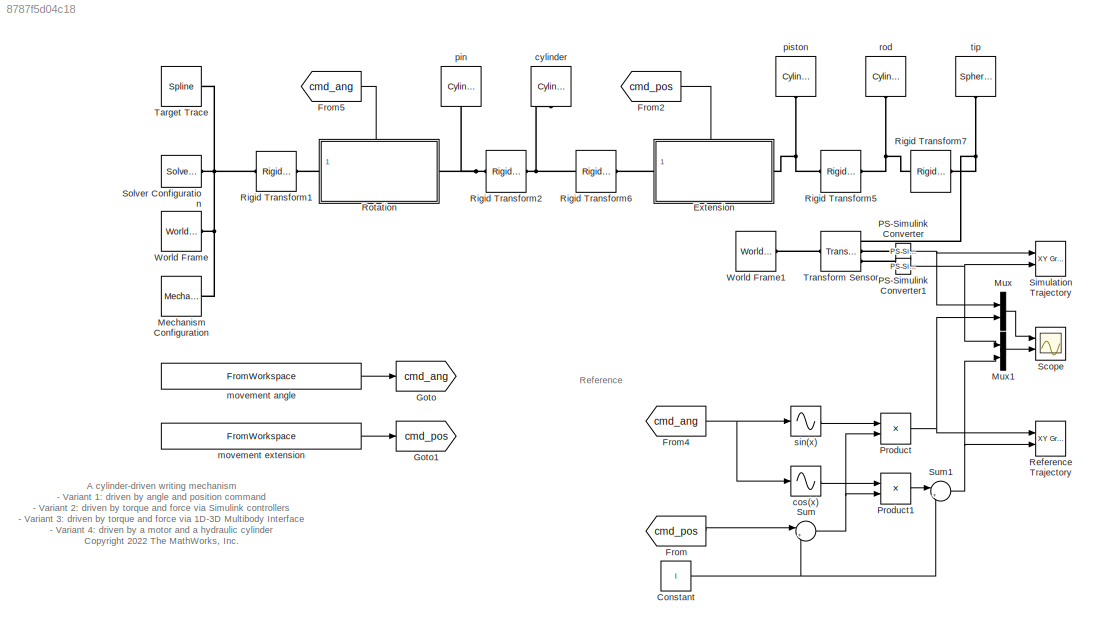
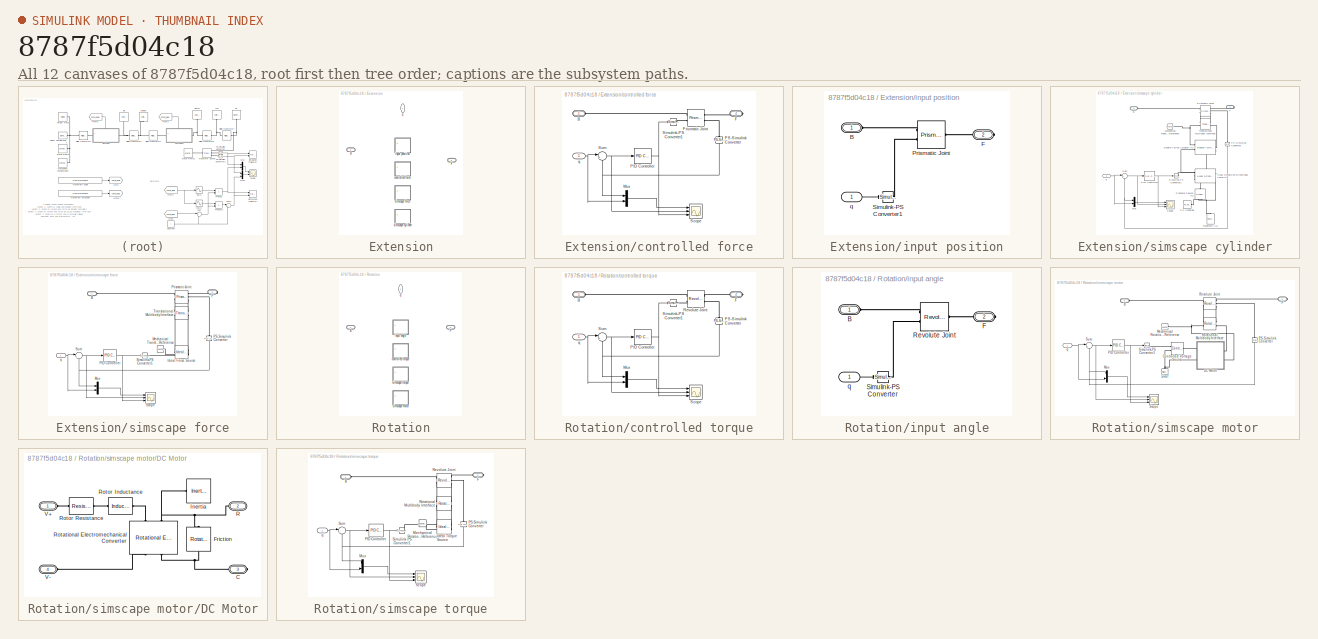
[diagram: thumbnail index - all 12 canvases of the model, root first then tree order]
MODEL slx_8787f5d04c18
KIND model
CONFIG AbsTol = 1e-3
CONFIG EnableMultiTasking = on
CONFIG FixedStep = auto
CONFIG MaxStep = 1e-2
CONFIG MinStep = auto
CONFIG PreLoadFcn = init_writing_arm;
CONFIG RelTol = 1e-3
CONFIG SampleTimeConstraint = Unconstrained
CONFIG SolverName = VariableStepAuto
CONFIG StartTime = 0.0
CONFIG StopTime = tsim
BLOCK [Constant] Constant
  Value = l
BLOCK [SubSystem] Extension
  LabelModeActiveChoice = v1
  PortSchema = {"entries":[{"content":{"sides":[{"content":{"connectorIds":["LConn1"]},"type":"ConnectorPlacement.EquallySpacedRectSide","uuid":"bead34ab-44f9-4a5f-9198-646401a7f693"},{"content":{"connectorIds":["RConn1"],"side":"RIGHT"},"type":"ConnectorPlacement.EquallySpacedRectSide","uuid":"af49e909-a3ff-4bd4-8c7b-cf1fb487ed9a"},{"content":{"connectorIds":["In1"],"side":"TOP"},"type":"ConnectorPlacement.Equa...<+250ch>  <repeated x10 — deduplicated; at blocks: Extension, controlled force, input position, simscape cylinder, simscape force, Rotation, controlled torque, input angle, simscape motor, simscape torque>
  Ports = [1, 0, 0, 0, 0, 1, 1]
  RequestExecContextInheritance = off
  Variant = on
  VariantControl = Choice
  VariantControlMode = label
BLOCK [PMIOPort] Extension/B
  Side = Left
BLOCK [PMIOPort] Extension/F
  Port = 2
  Side = Right
BLOCK [SubSystem] Extension/controlled force
  Ports = [1, 0, 0, 0, 0, 1, 1]
  RequestExecContextInheritance = off
  VariantControl = v2
BLOCK [PMIOPort] Extension/controlled force/B
  Side = Left
BLOCK [PMIOPort] Extension/controlled force/F
  Port = 2
  Side = Right
BLOCK [Mux] Extension/controlled force/Mux
  DisplayOption = bar
  Inputs = 2
  Ports = [2, 1]
BLOCK [Reference] Extension/controlled force/PID Controller  REF=pid_lib/PID Controller
  Ports = [1, 1]
  SourceBlock = pid_lib/PID Controller
  SourceProductBaseCode = SL
  SourceType = PID 1dof
BLOCK [Reference] Extension/controlled force/PS-Simulink Converter  REF=nesl_utility/PS-Simulink
Converter
  NameLocation = left
  Ports = [0, 1, 0, 0, 0, 1]
  SourceBlock = nesl_utility/PS-Simulink\nConverter
  SourceProductBaseCode = PW,SS
  SourceType = PS-Simulink\nConverter
BLOCK [Reference] Extension/controlled force/Prismatic Joint  REF=sm_lib/Joints/Prismatic
Joint
  Ports = [0, 0, 0, 0, 0, 2, 2]
  SourceBlock = sm_lib/Joints/Prismatic\nJoint
  SourceProductBaseCode = MS
  SourceType = Prismatic\nJoint
BLOCK [Scope] Extension/controlled force/Scope
  Floating = off
  NumInputPorts = 3
  Ports = [3]
  ScopeSpecificationString = Simulink.scopes.TimeScopeBlockCfg('CurrentConfiguration', extmgr.ConfigurationSet(extmgr.Configuration('Core','General UI',true),extmgr.Configuration('Core','Source UI',true),extmgr.Configuration('Sources','WiredSimulink',true,'DataLoggingVariableName','ScopeData1'),extmgr.Configuration('Visuals','Time Domain',true,'SerializedDisplays',{struct('MinYLimReal','-17.41288','MaxYLimReal','156.71593','Y...<+2775ch>
BLOCK [Reference] Extension/controlled force/Simulink-PS Converter1  REF=nesl_utility/Simulink-PS
Converter
  Ports = [1, 0, 0, 0, 0, 0, 1]
  SourceBlock = nesl_utility/Simulink-PS\nConverter
  SourceProductBaseCode = PW,SS
  SourceType = Simulink-PS\nConverter
BLOCK [Sum] Extension/controlled force/Sum
  Inputs = |+-
  Ports = [2, 1]
BLOCK [Inport] Extension/controlled force/q
BLOCK [SubSystem] Extension/input position
  Ports = [1, 0, 0, 0, 0, 1, 1]
  RequestExecContextInheritance = off
  VariantControl = v1
BLOCK [PMIOPort] Extension/input position/B
  Side = Left
BLOCK [PMIOPort] Extension/input position/F
  Port = 2
  Side = Right
BLOCK [Reference] Extension/input position/Prismatic Joint  REF=sm_lib/Joints/Prismatic
Joint
  Ports = [0, 0, 0, 0, 0, 2, 1]
  SourceBlock = sm_lib/Joints/Prismatic\nJoint
  SourceProductBaseCode = MS
  SourceType = Prismatic\nJoint
BLOCK [Reference] Extension/input position/Simulink-PS Converter1  REF=nesl_utility/Simulink-PS
Converter
  Ports = [1, 0, 0, 0, 0, 0, 1]
  SourceBlock = nesl_utility/Simulink-PS\nConverter
  SourceProductBaseCode = PW,SS
  SourceType = Simulink-PS\nConverter
BLOCK [Inport] Extension/input position/q
BLOCK [Inport] Extension/q
  NameLocation = left
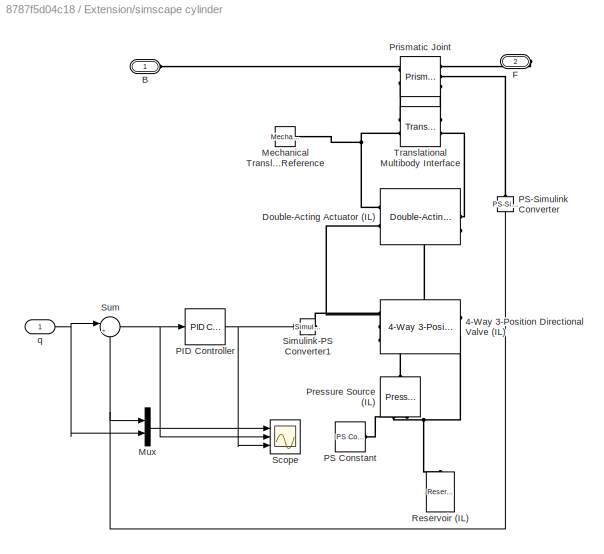
BLOCK [SubSystem] Extension/simscape cylinder
  Ports = [1, 0, 0, 0, 0, 1, 1]
  RequestExecContextInheritance = off
  VariantControl = v4
BLOCK [Reference] Extension/simscape cylinder/4-Way 3-Position Directional Valve (IL)  REF=SimscapeFluids_lib/Isothermal Liquid/Valves & Orifices/Directional Control
Valves/4-Way 3-Position
Directional Valve
(IL)
  Ports = [0, 0, 0, 0, 0, 3, 2]
  SourceBlock = SimscapeFluids_lib/Isothermal Liquid/Valves & Orifices/Directional Control\nValves/4-Way 3-Position\nDirectional Valve\n(IL)
  SourceProductBaseCode = SH
  SourceType = 4-Way 3-Position\nDirectional Valve\n(IL)
BLOCK [PMIOPort] Extension/simscape cylinder/B
  Side = Left
BLOCK [Reference] Extension/simscape cylinder/Double-Acting Actuator (IL)  REF=SimscapeFluids_lib/Isothermal Liquid/Actuators/Double-Acting
Actuator (IL)
  Ports = [0, 0, 0, 0, 0, 2, 3]
  SourceBlock = SimscapeFluids_lib/Isothermal Liquid/Actuators/Double-Acting\nActuator (IL)
  SourceProductBaseCode = SH
  SourceType = Double-Acting\nActuator (IL)
BLOCK [PMIOPort] Extension/simscape cylinder/F
  Port = 2
  Side = Right
BLOCK [Reference] Extension/simscape cylinder/Mechanical Translational Reference  REF=fl_lib/Mechanical/Translational
Elements/Mechanical
Translational
Reference
  Ports = [0, 0, 0, 0, 0, 1]
  SourceBlock = fl_lib/Mechanical/Translational\nElements/Mechanical\nTranslational\nReference
  SourceProductBaseCode = SS
  SourceType = Mechanical\nTranslational\nReference
BLOCK [Mux] Extension/simscape cylinder/Mux
  DisplayOption = bar
  Inputs = 2
  Ports = [2, 1]
BLOCK [Reference] Extension/simscape cylinder/PID Controller  REF=pid_lib/PID Controller
  Ports = [1, 1]
  SourceBlock = pid_lib/PID Controller
  SourceProductBaseCode = SL
  SourceType = PID 1dof
BLOCK [Reference] Extension/simscape cylinder/PS Constant  REF=fl_lib/Physical Signals/Sources/PS Constant
  Ports = [0, 0, 0, 0, 0, 0, 1]
  SourceBlock = fl_lib/Physical Signals/Sources/PS Constant
  SourceProductBaseCode = SS
  SourceType = PS Constant
BLOCK [Reference] Extension/simscape cylinder/PS-Simulink Converter  REF=nesl_utility/PS-Simulink
Converter
  NameLocation = left
  Ports = [0, 1, 0, 0, 0, 1]
  SourceBlock = nesl_utility/PS-Simulink\nConverter
  SourceProductBaseCode = PW,SS
  SourceType = PS-Simulink\nConverter
BLOCK [Reference] Extension/simscape cylinder/Pressure Source (IL)  REF=fl_lib/Isothermal Liquid/Sources/Pressure Source (IL)
  NameLocation = right
  Ports = [0, 0, 0, 0, 0, 2, 1]
  SourceBlock = fl_lib/Isothermal Liquid/Sources/Pressure Source (IL)
  SourceProductBaseCode = SS
  SourceType = Pressure Source (IL)
BLOCK [Reference] Extension/simscape cylinder/Prismatic Joint  REF=sm_lib/Joints/Prismatic
Joint
  Ports = [0, 0, 0, 0, 0, 2, 3]
  SourceBlock = sm_lib/Joints/Prismatic\nJoint
  SourceProductBaseCode = MS
  SourceType = Prismatic\nJoint
BLOCK [Reference] Extension/simscape cylinder/Reservoir (IL)  REF=fl_lib/Isothermal Liquid/Elements/Reservoir (IL)
  NameLocation = right
  Ports = [0, 0, 0, 0, 0, 1]
  SourceBlock = fl_lib/Isothermal Liquid/Elements/Reservoir (IL)
  SourceProductBaseCode = SS
  SourceType = Reservoir (IL)
BLOCK [Scope] Extension/simscape cylinder/Scope
  Floating = off
  NumInputPorts = 3
  Ports = [3]
  ScopeSpecificationString = Simulink.scopes.TimeScopeBlockCfg('CurrentConfiguration', extmgr.ConfigurationSet(extmgr.Configuration('Core','General UI',true),extmgr.Configuration('Core','Source UI',true),extmgr.Configuration('Sources','WiredSimulink',true,'DataLoggingVariableName','ScopeData1'),extmgr.Configuration('Visuals','Time Domain',true,'SerializedDisplays',{struct('MinYLimReal','-17.40997','MaxYLimReal','156.6897','YL...<+2794ch>
BLOCK [Reference] Extension/simscape cylinder/Simulink-PS Converter1  REF=nesl_utility/Simulink-PS
Converter
  Ports = [1, 0, 0, 0, 0, 0, 1]
  SourceBlock = nesl_utility/Simulink-PS\nConverter
  SourceProductBaseCode = PW,SS
  SourceType = Simulink-PS\nConverter
BLOCK [Sum] Extension/simscape cylinder/Sum
  Inputs = |+-
  Ports = [2, 1]
BLOCK [Reference] Extension/simscape cylinder/Translational Multibody Interface  REF=fl_lib/Mechanical/Multibody Interfaces/Translational
Multibody Interface
  Ports = [0, 0, 0, 0, 0, 2, 2]
  SourceBlock = fl_lib/Mechanical/Multibody Interfaces/Translational\nMultibody Interface
  SourceProductBaseCode = SS
  SourceType = Translational\nMultibody Interface
BLOCK [Inport] Extension/simscape cylinder/q
BLOCK [SubSystem] Extension/simscape force
  Ports = [1, 0, 0, 0, 0, 1, 1]
  RequestExecContextInheritance = off
  VariantControl = v3
BLOCK [PMIOPort] Extension/simscape force/B
  Side = Left
BLOCK [PMIOPort] Extension/simscape force/F
  Port = 2
  Side = Right
BLOCK [Reference] Extension/simscape force/Ideal Force Source  REF=fl_lib/Mechanical/Mechanical Sources/Ideal Force Source
  NameLocation = top
  Ports = [0, 0, 0, 0, 0, 1, 2]
  SourceBlock = fl_lib/Mechanical/Mechanical Sources/Ideal Force Source
  SourceProductBaseCode = SS
  SourceType = Ideal Force Source
BLOCK [Reference] Extension/simscape force/Mechanical Translational Reference  REF=fl_lib/Mechanical/Translational
Elements/Mechanical
Translational
Reference
  Ports = [0, 0, 0, 0, 0, 1]
  SourceBlock = fl_lib/Mechanical/Translational\nElements/Mechanical\nTranslational\nReference
  SourceProductBaseCode = SS
  SourceType = Mechanical\nTranslational\nReference
BLOCK [Mux] Extension/simscape force/Mux
  DisplayOption = bar
  Inputs = 2
  Ports = [2, 1]
BLOCK [Reference] Extension/simscape force/PID Controller  REF=pid_lib/PID Controller
  Ports = [1, 1]
  SourceBlock = pid_lib/PID Controller
  SourceProductBaseCode = SL
  SourceType = PID 1dof
BLOCK [Reference] Extension/simscape force/PS-Simulink Converter  REF=nesl_utility/PS-Simulink
Converter
  NameLocation = left
  Ports = [0, 1, 0, 0, 0, 1]
  SourceBlock = nesl_utility/PS-Simulink\nConverter
  SourceProductBaseCode = PW,SS
  SourceType = PS-Simulink\nConverter
BLOCK [Reference] Extension/simscape force/Prismatic Joint  REF=sm_lib/Joints/Prismatic
Joint
  Ports = [0, 0, 0, 0, 0, 2, 3]
  SourceBlock = sm_lib/Joints/Prismatic\nJoint
  SourceProductBaseCode = MS
  SourceType = Prismatic\nJoint
BLOCK [Scope] Extension/simscape force/Scope
  Floating = off
  NumInputPorts = 3
  Ports = [3]
  ScopeSpecificationString = Simulink.scopes.TimeScopeBlockCfg('CurrentConfiguration', extmgr.ConfigurationSet(extmgr.Configuration('Core','General UI',true),extmgr.Configuration('Core','Source UI',true),extmgr.Configuration('Sources','WiredSimulink',true,'DataLoggingVariableName','ScopeData1'),extmgr.Configuration('Visuals','Time Domain',true,'SerializedDisplays',{struct('MinYLimReal','-17.41288','MaxYLimReal','156.71593','Y...<+2775ch>
BLOCK [Reference] Extension/simscape force/Simulink-PS Converter1  REF=nesl_utility/Simulink-PS
Converter
  Ports = [1, 0, 0, 0, 0, 0, 1]
  SourceBlock = nesl_utility/Simulink-PS\nConverter
  SourceProductBaseCode = PW,SS
  SourceType = Simulink-PS\nConverter
BLOCK [Sum] Extension/simscape force/Sum
  Inputs = |+-
  Ports = [2, 1]
BLOCK [Reference] Extension/simscape force/Translational Multibody Interface  REF=fl_lib/Mechanical/Multibody Interfaces/Translational
Multibody Interface
  Ports = [0, 0, 0, 0, 0, 2, 2]
  SourceBlock = fl_lib/Mechanical/Multibody Interfaces/Translational\nMultibody Interface
  SourceProductBaseCode = SS
  SourceType = Translational\nMultibody Interface
BLOCK [Inport] Extension/simscape force/q
BLOCK [From] From
  GotoTag = cmd_pos
BLOCK [From] From2
  GotoTag = cmd_pos
BLOCK [From] From4
  GotoTag = cmd_ang
BLOCK [From] From5
  GotoTag = cmd_ang
BLOCK [Goto] Goto
  GotoTag = cmd_ang
BLOCK [Goto] Goto1
  GotoTag = cmd_pos
BLOCK [Reference] Mechanism Configuration  REF=sm_lib/Utilities/Mechanism
Configuration
  Ports = [0, 0, 0, 0, 0, 0, 1]
  SourceBlock = sm_lib/Utilities/Mechanism\nConfiguration
  SourceProductBaseCode = MS
  SourceType = Mechanism\nConfiguration
BLOCK [Mux] Mux
  DisplayOption = bar
  Inputs = 2
  Ports = [2, 1]
BLOCK [Mux] Mux1
  DisplayOption = bar
  Inputs = 2
  Ports = [2, 1]
BLOCK [Reference] PS-Simulink Converter  REF=nesl_utility/PS-Simulink
Converter
  Ports = [0, 1, 0, 0, 0, 1]
  SourceBlock = nesl_utility/PS-Simulink\nConverter
  SourceProductBaseCode = PW,SS
  SourceType = PS-Simulink\nConverter
BLOCK [Reference] PS-Simulink Converter1  REF=nesl_utility/PS-Simulink
Converter
  Ports = [0, 1, 0, 0, 0, 1]
  SourceBlock = nesl_utility/PS-Simulink\nConverter
  SourceProductBaseCode = PW,SS
  SourceType = PS-Simulink\nConverter
BLOCK [Product] Product
  Ports = [2, 1]
BLOCK [Product] Product1
  Ports = [2, 1]
BLOCK [Reference] Reference Trajectory  REF=simulink/Sinks/XY Graph
  NameLocation = top
  Ports = [2]
  SourceBlock = simulink/Sinks/XY Graph
  SourceProductBaseCode = SL
  SourceType = XY scope.
BLOCK [Reference] Rigid Transform1  REF=sm_lib/Frames and
Transforms/Rigid
Transform
  Ports = [0, 0, 0, 0, 0, 1, 1]
  SourceBlock = sm_lib/Frames and\nTransforms/Rigid\nTransform
  SourceProductBaseCode = MS
  SourceType = Rigid\nTransform
BLOCK [Reference] Rigid Transform2  REF=sm_lib/Frames and
Transforms/Rigid
Transform
  Ports = [0, 0, 0, 0, 0, 1, 1]
  SourceBlock = sm_lib/Frames and\nTransforms/Rigid\nTransform
  SourceProductBaseCode = MS
  SourceType = Rigid\nTransform
BLOCK [Reference] Rigid Transform5  REF=sm_lib/Frames and
Transforms/Rigid
Transform
  Ports = [0, 0, 0, 0, 0, 1, 1]
  SourceBlock = sm_lib/Frames and\nTransforms/Rigid\nTransform
  SourceProductBaseCode = MS
  SourceType = Rigid\nTransform
BLOCK [Reference] Rigid Transform6  REF=sm_lib/Frames and
Transforms/Rigid
Transform
  Ports = [0, 0, 0, 0, 0, 1, 1]
  SourceBlock = sm_lib/Frames and\nTransforms/Rigid\nTransform
  SourceProductBaseCode = MS
  SourceType = Rigid\nTransform
BLOCK [Reference] Rigid Transform7  REF=sm_lib/Frames and
Transforms/Rigid
Transform
  Ports = [0, 0, 0, 0, 0, 1, 1]
  SourceBlock = sm_lib/Frames and\nTransforms/Rigid\nTransform
  SourceProductBaseCode = MS
  SourceType = Rigid\nTransform
BLOCK [SubSystem] Rotation
  LabelModeActiveChoice = v1
  Ports = [1, 0, 0, 0, 0, 1, 1]
  RequestExecContextInheritance = off
  Variant = on
  VariantControl = Choice
  VariantControlMode = label
BLOCK [PMIOPort] Rotation/B
  Side = Left
BLOCK [PMIOPort] Rotation/F
  Port = 2
  Side = Right
BLOCK [SubSystem] Rotation/controlled torque
  Ports = [1, 0, 0, 0, 0, 1, 1]
  RequestExecContextInheritance = off
  VariantControl = v2
BLOCK [PMIOPort] Rotation/controlled torque/B
  Side = Left
BLOCK [PMIOPort] Rotation/controlled torque/F
  Port = 2
  Side = Right
BLOCK [Mux] Rotation/controlled torque/Mux
  DisplayOption = bar
  Inputs = 2
  Ports = [2, 1]
BLOCK [Reference] Rotation/controlled torque/PID Controller  REF=pid_lib/PID Controller
  Ports = [1, 1]
  SourceBlock = pid_lib/PID Controller
  SourceProductBaseCode = SL
  SourceType = PID 1dof
BLOCK [Reference] Rotation/controlled torque/PS-Simulink Converter  REF=nesl_utility/PS-Simulink
Converter
  NameLocation = left
  Ports = [0, 1, 0, 0, 0, 1]
  SourceBlock = nesl_utility/PS-Simulink\nConverter
  SourceProductBaseCode = PW,SS
  SourceType = PS-Simulink\nConverter
BLOCK [Reference] Rotation/controlled torque/Revolute Joint  REF=sm_lib/Joints/Revolute Joint
  Ports = [0, 0, 0, 0, 0, 2, 2]
  SourceBlock = sm_lib/Joints/Revolute Joint
  SourceProductBaseCode = MS
  SourceType = Revolute Joint
BLOCK [Scope] Rotation/controlled torque/Scope
  Floating = off
  NumInputPorts = 3
  Ports = [3]
  ScopeSpecificationString = Simulink.scopes.TimeScopeBlockCfg('CurrentConfiguration', extmgr.ConfigurationSet(extmgr.Configuration('Core','General UI',true),extmgr.Configuration('Core','Source UI',true),extmgr.Configuration('Sources','WiredSimulink',true,'DataLoggingVariableName','ScopeData1'),extmgr.Configuration('Visuals','Time Domain',true,'SerializedDisplays',{struct('MinYLimReal','-0.6432','MaxYLimReal','0.60487','YLabe...<+2726ch>
BLOCK [Reference] Rotation/controlled torque/Simulink-PS Converter1  REF=nesl_utility/Simulink-PS
Converter
  Ports = [1, 0, 0, 0, 0, 0, 1]
  SourceBlock = nesl_utility/Simulink-PS\nConverter
  SourceProductBaseCode = PW,SS
  SourceType = Simulink-PS\nConverter
BLOCK [Sum] Rotation/controlled torque/Sum
  Inputs = |+-
  Ports = [2, 1]
BLOCK [Inport] Rotation/controlled torque/q
BLOCK [SubSystem] Rotation/input angle
  Ports = [1, 0, 0, 0, 0, 1, 1]
  RequestExecContextInheritance = off
  VariantControl = v1
BLOCK [PMIOPort] Rotation/input angle/B
  Side = Left
BLOCK [PMIOPort] Rotation/input angle/F
  Port = 2
  Side = Right
BLOCK [Reference] Rotation/input angle/Revolute Joint  REF=sm_lib/Joints/Revolute Joint
  Ports = [0, 0, 0, 0, 0, 2, 1]
  SourceBlock = sm_lib/Joints/Revolute Joint
  SourceProductBaseCode = MS
  SourceType = Revolute Joint
BLOCK [Reference] Rotation/input angle/Simulink-PS Converter  REF=nesl_utility/Simulink-PS
Converter
  Ports = [1, 0, 0, 0, 0, 0, 1]
  SourceBlock = nesl_utility/Simulink-PS\nConverter
  SourceProductBaseCode = PW,SS
  SourceType = Simulink-PS\nConverter
BLOCK [Inport] Rotation/input angle/q
BLOCK [Inport] Rotation/q
  NameLocation = left
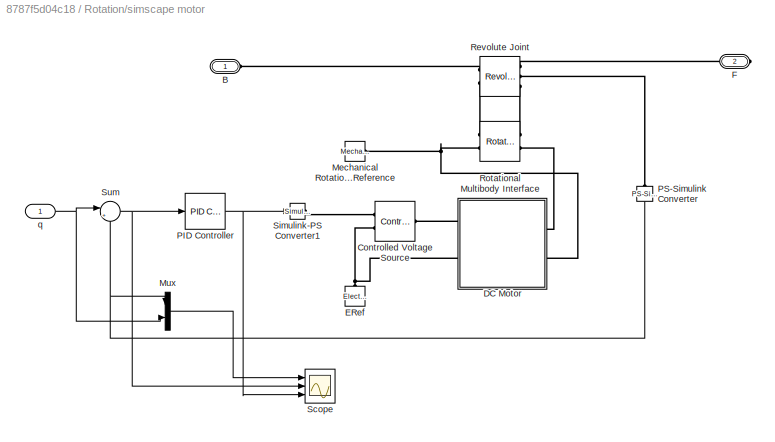
BLOCK [SubSystem] Rotation/simscape motor
  Ports = [1, 0, 0, 0, 0, 1, 1]
  RequestExecContextInheritance = off
  VariantControl = v4
BLOCK [PMIOPort] Rotation/simscape motor/B
  Side = Left
BLOCK [Reference] Rotation/simscape motor/Controlled Voltage Source  REF=fl_lib/Electrical/Electrical Sources/Controlled Voltage
Source
  Ports = [0, 0, 0, 0, 0, 1, 2]
  SourceBlock = fl_lib/Electrical/Electrical Sources/Controlled Voltage\nSource
  SourceProductBaseCode = SS
  SourceType = Controlled Voltage\nSource
BLOCK [SubSystem] Rotation/simscape motor/DC Motor
  Ports = [0, 0, 0, 0, 0, 2, 2]
  RequestExecContextInheritance = off
  Tag = PublishSubsystem
BLOCK [PMIOPort] Rotation/simscape motor/DC Motor/C
  Port = 3
  Side = Right
BLOCK [Reference] Rotation/simscape motor/DC Motor/Friction  REF=fl_lib/Mechanical/Rotational Elements/Rotational Friction
  Commented = on
  NameLocation = right
  Ports = [0, 0, 0, 0, 0, 1, 1]
  SourceBlock = fl_lib/Mechanical/Rotational Elements/Rotational Friction
  SourceProductBaseCode = SS
  SourceType = Rotational Friction
BLOCK [Reference] Rotation/simscape motor/DC Motor/Inertia  REF=fl_lib/Mechanical/Rotational Elements/Inertia
  NameLocation = top
  Ports = [0, 0, 0, 0, 0, 1]
  SourceBlock = fl_lib/Mechanical/Rotational Elements/Inertia
  SourceProductBaseCode = SS
  SourceType = Inertia
BLOCK [PMIOPort] Rotation/simscape motor/DC Motor/R
  Port = 2
  Side = Right
BLOCK [Reference] Rotation/simscape motor/DC Motor/Rotational Electromechanical Converter  REF=fl_lib/Electrical/Electrical Elements/Rotational
Electromechanical
Converter
  NameLocation = left
  Ports = [0, 0, 0, 0, 0, 2, 2]
  SourceBlock = fl_lib/Electrical/Electrical Elements/Rotational\nElectromechanical\nConverter
  SourceProductBaseCode = SS
  SourceType = Rotational\nElectromechanical\nConverter
BLOCK [Reference] Rotation/simscape motor/DC Motor/Rotor Inductance  REF=fl_lib/Electrical/Electrical Elements/Inductor
  Ports = [0, 0, 0, 0, 0, 1, 1]
  SourceBlock = fl_lib/Electrical/Electrical Elements/Inductor
  SourceProductBaseCode = SS
  SourceType = Inductor
BLOCK [Reference] Rotation/simscape motor/DC Motor/Rotor Resistance  REF=fl_lib/Electrical/Electrical Elements/Resistor
  Ports = [0, 0, 0, 0, 0, 1, 1]
  SourceBlock = fl_lib/Electrical/Electrical Elements/Resistor
  SourceProductBaseCode = SS
  SourceType = Resistor
  Tag = Factory Generic
BLOCK [PMIOPort] Rotation/simscape motor/DC Motor/V+
  Side = Left
BLOCK [PMIOPort] Rotation/simscape motor/DC Motor/V-
  Port = 4
  Side = Left
BLOCK [Reference] Rotation/simscape motor/ERef  REF=fl_lib/Electrical/Electrical Elements/Electrical Reference
  NameLocation = right
  Ports = [0, 0, 0, 0, 0, 1]
  SourceBlock = fl_lib/Electrical/Electrical Elements/Electrical Reference
  SourceProductBaseCode = SS
  SourceType = Electrical Reference
BLOCK [PMIOPort] Rotation/simscape motor/F
  Port = 2
  Side = Right
BLOCK [Reference] Rotation/simscape motor/Mechanical Rotational Reference  REF=fl_lib/Mechanical/Rotational Elements/Mechanical
Rotational Reference
  Ports = [0, 0, 0, 0, 0, 1]
  SourceBlock = fl_lib/Mechanical/Rotational Elements/Mechanical\nRotational Reference
  SourceProductBaseCode = SS
  SourceType = Mechanical\nRotational Reference
BLOCK [Mux] Rotation/simscape motor/Mux
  DisplayOption = bar
  Inputs = 2
  Ports = [2, 1]
BLOCK [Reference] Rotation/simscape motor/PID Controller  REF=pid_lib/PID Controller
  Ports = [1, 1]
  SourceBlock = pid_lib/PID Controller
  SourceProductBaseCode = SL
  SourceType = PID 1dof
BLOCK [Reference] Rotation/simscape motor/PS-Simulink Converter  REF=nesl_utility/PS-Simulink
Converter
  NameLocation = right
  Ports = [0, 1, 0, 0, 0, 1]
  SourceBlock = nesl_utility/PS-Simulink\nConverter
  SourceProductBaseCode = PW,SS
  SourceType = PS-Simulink\nConverter
BLOCK [Reference] Rotation/simscape motor/Revolute Joint  REF=sm_lib/Joints/Revolute Joint
  Ports = [0, 0, 0, 0, 0, 2, 3]
  SourceBlock = sm_lib/Joints/Revolute Joint
  SourceProductBaseCode = MS
  SourceType = Revolute Joint
BLOCK [Reference] Rotation/simscape motor/Rotational Multibody Interface  REF=fl_lib/Mechanical/Multibody Interfaces/Rotational Multibody
Interface
  Ports = [0, 0, 0, 0, 0, 2, 2]
  SourceBlock = fl_lib/Mechanical/Multibody Interfaces/Rotational Multibody\nInterface
  SourceProductBaseCode = SS
  SourceType = Rotational Multibody\nInterface
BLOCK [Scope] Rotation/simscape motor/Scope
  Floating = off
  NumInputPorts = 3
  Ports = [3]
  ScopeSpecificationString = Simulink.scopes.TimeScopeBlockCfg('CurrentConfiguration', extmgr.ConfigurationSet(extmgr.Configuration('Core','General UI',true),extmgr.Configuration('Core','Source UI',true),extmgr.Configuration('Sources','WiredSimulink',true,'DataLoggingVariableName','ScopeData1'),extmgr.Configuration('Visuals','Time Domain',true,'SerializedDisplays',{struct('MinYLimReal','-0.64471','MaxYLimReal','0.60466','YLab...<+2730ch>
BLOCK [Reference] Rotation/simscape motor/Simulink-PS Converter1  REF=nesl_utility/Simulink-PS
Converter
  Ports = [1, 0, 0, 0, 0, 0, 1]
  SourceBlock = nesl_utility/Simulink-PS\nConverter
  SourceProductBaseCode = PW,SS
  SourceType = Simulink-PS\nConverter
BLOCK [Sum] Rotation/simscape motor/Sum
  Inputs = |+-
  Ports = [2, 1]
BLOCK [Inport] Rotation/simscape motor/q
BLOCK [SubSystem] Rotation/simscape torque
  Ports = [1, 0, 0, 0, 0, 1, 1]
  RequestExecContextInheritance = off
  VariantControl = v3
BLOCK [PMIOPort] Rotation/simscape torque/B
  Side = Left
BLOCK [PMIOPort] Rotation/simscape torque/F
  Port = 2
  Side = Right
BLOCK [Reference] Rotation/simscape torque/Ideal Torque Source  REF=fl_lib/Mechanical/Mechanical Sources/Ideal Torque Source
  NameLocation = top
  Ports = [0, 0, 0, 0, 0, 1, 2]
  SourceBlock = fl_lib/Mechanical/Mechanical Sources/Ideal Torque Source
  SourceProductBaseCode = SS
  SourceType = Ideal Torque Source
BLOCK [Reference] Rotation/simscape torque/Mechanical Rotational Reference  REF=fl_lib/Mechanical/Rotational Elements/Mechanical
Rotational Reference
  Ports = [0, 0, 0, 0, 0, 1]
  SourceBlock = fl_lib/Mechanical/Rotational Elements/Mechanical\nRotational Reference
  SourceProductBaseCode = SS
  SourceType = Mechanical\nRotational Reference
BLOCK [Mux] Rotation/simscape torque/Mux
  DisplayOption = bar
  Inputs = 2
  Ports = [2, 1]
BLOCK [Reference] Rotation/simscape torque/PID Controller  REF=pid_lib/PID Controller
  Ports = [1, 1]
  SourceBlock = pid_lib/PID Controller
  SourceProductBaseCode = SL
  SourceType = PID 1dof
BLOCK [Reference] Rotation/simscape torque/PS-Simulink Converter  REF=nesl_utility/PS-Simulink
Converter
  NameLocation = left
  Ports = [0, 1, 0, 0, 0, 1]
  SourceBlock = nesl_utility/PS-Simulink\nConverter
  SourceProductBaseCode = PW,SS
  SourceType = PS-Simulink\nConverter
BLOCK [Reference] Rotation/simscape torque/Revolute Joint  REF=sm_lib/Joints/Revolute Joint
  Ports = [0, 0, 0, 0, 0, 2, 3]
  SourceBlock = sm_lib/Joints/Revolute Joint
  SourceProductBaseCode = MS
  SourceType = Revolute Joint
BLOCK [Reference] Rotation/simscape torque/Rotational Multibody Interface  REF=fl_lib/Mechanical/Multibody Interfaces/Rotational Multibody
Interface
  Ports = [0, 0, 0, 0, 0, 2, 2]
  SourceBlock = fl_lib/Mechanical/Multibody Interfaces/Rotational Multibody\nInterface
  SourceProductBaseCode = SS
  SourceType = Rotational Multibody\nInterface
BLOCK [Scope] Rotation/simscape torque/Scope
  Floating = off
  NumInputPorts = 3
  Ports = [3]
  ScopeSpecificationString = Simulink.scopes.TimeScopeBlockCfg('CurrentConfiguration', extmgr.ConfigurationSet(extmgr.Configuration('Core','General UI',true),extmgr.Configuration('Core','Source UI',true),extmgr.Configuration('Sources','WiredSimulink',true,'DataLoggingVariableName','ScopeData1'),extmgr.Configuration('Visuals','Time Domain',true,'SerializedDisplays',{struct('MinYLimReal','-0.64508','MaxYLimReal','0.60508','YLab...<+2728ch>
BLOCK [Reference] Rotation/simscape torque/Simulink-PS Converter1  REF=nesl_utility/Simulink-PS
Converter
  Ports = [1, 0, 0, 0, 0, 0, 1]
  SourceBlock = nesl_utility/Simulink-PS\nConverter
  SourceProductBaseCode = PW,SS
  SourceType = Simulink-PS\nConverter
BLOCK [Sum] Rotation/simscape torque/Sum
  Inputs = |+-
  Ports = [2, 1]
BLOCK [Inport] Rotation/simscape torque/q
BLOCK [Scope] Scope
  Floating = off
  NumInputPorts = 2
  Ports = [2]
  ScopeSpecificationString = Simulink.scopes.TimeScopeBlockCfg('CurrentConfiguration', extmgr.ConfigurationSet(extmgr.Configuration('Core','General UI',true),extmgr.Configuration('Core','Source UI',true),extmgr.Configuration('Sources','WiredSimulink',true),extmgr.Configuration('Visuals','Time Domain',true,'SerializedDisplays',{struct('MinYLimReal','-175.60716','MaxYLimReal','169.69897','YLabelReal','','MinYLimMag',' 0.00000',...<+2085ch>
BLOCK [Reference] Simulation Trajectory  REF=simulink/Sinks/XY Graph
  NameLocation = top
  Ports = [2]
  SourceBlock = simulink/Sinks/XY Graph
  SourceProductBaseCode = SL
  SourceType = XY scope.
BLOCK [Reference] Solver Configuration  REF=nesl_utility/Solver
Configuration
  Ports = [0, 0, 0, 0, 0, 0, 1]
  SourceBlock = nesl_utility/Solver\nConfiguration
  SourceProductBaseCode = PW,SS
  SourceType = Solver\nConfiguration
BLOCK [Sum] Sum
  Inputs = |++
  Ports = [2, 1]
BLOCK [Sum] Sum1
  Inputs = |+-
  Ports = [2, 1]
BLOCK [Reference] Target Trace  REF=sm_lib/Curves and Surfaces/Spline
  Ports = [0, 0, 0, 0, 0, 1, 1]
  SourceBlock = sm_lib/Curves and Surfaces/Spline
  SourceProductBaseCode = MS
  SourceType = Spline
BLOCK [Reference] Transform Sensor  REF=sm_lib/Frames and
Transforms/Transform
Sensor
  Ports = [0, 0, 0, 0, 0, 1, 3]
  SourceBlock = sm_lib/Frames and\nTransforms/Transform\nSensor
  SourceProductBaseCode = MS
  SourceType = Transform\nSensor
BLOCK [Reference] World Frame  REF=sm_lib/Frames and
Transforms/World Frame
  Ports = [0, 0, 0, 0, 0, 0, 1]
  SourceBlock = sm_lib/Frames and\nTransforms/World Frame
  SourceProductBaseCode = MS
  SourceType = World Frame
BLOCK [Reference] World Frame1  REF=sm_lib/Frames and
Transforms/World Frame
  NameLocation = top
  Ports = [0, 0, 0, 0, 0, 0, 1]
  SourceBlock = sm_lib/Frames and\nTransforms/World Frame
  SourceProductBaseCode = MS
  SourceType = World Frame
BLOCK [Sin] cos(x)
  Phase = pi/2
  Ports = [1, 1]
  SampleTime = 0
  TimeSource = Use external signal
BLOCK [Reference] cylinder  REF=sm_lib/Body Elements/Cylindrical Solid
  NameLocation = top
  Ports = [0, 0, 0, 0, 0, 0, 1]
  SourceBlock = sm_lib/Body Elements/Cylindrical Solid
  SourceProductBaseCode = MS
  SourceType = Cylindrical Solid
BLOCK [FromWorkspace] movement angle
  OutputAfterFinalValue = Holding final value
  VariableName = [act_cmd.time act_cmd.rot]
BLOCK [FromWorkspace] movement extension
  OutputAfterFinalValue = Holding final value
  VariableName = [act_cmd.time act_cmd.pos]
BLOCK [Reference] pin  REF=sm_lib/Body Elements/Cylindrical Solid
  NameLocation = top
  Ports = [0, 0, 0, 0, 0, 0, 1]
  SourceBlock = sm_lib/Body Elements/Cylindrical Solid
  SourceProductBaseCode = MS
  SourceType = Cylindrical Solid
BLOCK [Reference] piston  REF=sm_lib/Body Elements/Cylindrical Solid
  NameLocation = top
  Ports = [0, 0, 0, 0, 0, 0, 1]
  SourceBlock = sm_lib/Body Elements/Cylindrical Solid
  SourceProductBaseCode = MS
  SourceType = Cylindrical Solid
BLOCK [Reference] rod  REF=sm_lib/Body Elements/Cylindrical Solid
  NameLocation = top
  Ports = [0, 0, 0, 0, 0, 0, 1]
  SourceBlock = sm_lib/Body Elements/Cylindrical Solid
  SourceProductBaseCode = MS
  SourceType = Cylindrical Solid
BLOCK [Sin] sin(x)
  Phase = pi
  Ports = [1, 1]
  SampleTime = 0
  TimeSource = Use external signal
BLOCK [Reference] tip  REF=sm_lib/Body Elements/Spherical Solid
  NameLocation = top
  Ports = [0, 0, 0, 0, 0, 0, 1]
  SourceBlock = sm_lib/Body Elements/Spherical Solid
  SourceProductBaseCode = MS
  SourceType = Spherical Solid
ANNOTATION (root): A cylinder-driven writing mechanism - Variant 1: driven by angle and position command - Variant 2: driven by torque and force via Simulink controllers - Variant 3: driven by torque and force via 1D-3D Multibody Interface - Variant 4: driven by a motor and a hydraulic cylinder <copyright redacted>
ANNOTATION (root): Reference
NET Constant:1 -> Sum1:2, Sum:2
LINE Extension/controlled force/Mux:1 -> Extension/controlled force/Scope:1
NET Extension/controlled force/PID Controller:1 -> Extension/controlled force/Scope:3, Extension/controlled force/Simulink-PS Converter1:1
NET Extension/controlled force/PS-Simulink Converter:1 -> Extension/controlled force/Mux:1, Extension/controlled force/Sum:2
NET Extension/controlled force/Sum:1 -> Extension/controlled force/PID Controller:1, Extension/controlled force/Scope:2
NET Extension/controlled force/q:1 -> Extension/controlled force/Mux:2, Extension/controlled force/Sum:1
LINE Extension/input position/q:1 -> Extension/input position/Simulink-PS Converter1:1
LINE Extension/simscape cylinder/Mux:1 -> Extension/simscape cylinder/Scope:1
NET Extension/simscape cylinder/PID Controller:1 -> Extension/simscape cylinder/Scope:3, Extension/simscape cylinder/Simulink-PS Converter1:1
NET Extension/simscape cylinder/PS-Simulink Converter:1 -> Extension/simscape cylinder/Mux:1, Extension/simscape cylinder/Sum:2
NET Extension/simscape cylinder/Sum:1 -> Extension/simscape cylinder/PID Controller:1, Extension/simscape cylinder/Scope:2
NET Extension/simscape cylinder/q:1 -> Extension/simscape cylinder/Mux:2, Extension/simscape cylinder/Sum:1
LINE Extension/simscape force/Mux:1 -> Extension/simscape force/Scope:1
NET Extension/simscape force/PID Controller:1 -> Extension/simscape force/Scope:3, Extension/simscape force/Simulink-PS Converter1:1
NET Extension/simscape force/PS-Simulink Converter:1 -> Extension/simscape force/Mux:1, Extension/simscape force/Sum:2
NET Extension/simscape force/Sum:1 -> Extension/simscape force/PID Controller:1, Extension/simscape force/Scope:2
NET Extension/simscape force/q:1 -> Extension/simscape force/Mux:2, Extension/simscape force/Sum:1
LINE From2:1 -> Extension:1
NET From4:1 -> cos(x):1, sin(x):1
LINE From5:1 -> Rotation:1
LINE From:1 -> Sum:1
LINE Mux1:1 -> Scope:2
LINE Mux:1 -> Scope:1
NET PS-Simulink Converter1:1 -> Mux1:1, Simulation Trajectory:2
NET PS-Simulink Converter:1 -> Mux:1, Simulation Trajectory:1
LINE Product1:1 -> Sum1:1
NET Product:1 -> Mux:2, Reference Trajectory:1
LINE Rotation/controlled torque/Mux:1 -> Rotation/controlled torque/Scope:1
NET Rotation/controlled torque/PID Controller:1 -> Rotation/controlled torque/Scope:3, Rotation/controlled torque/Simulink-PS Converter1:1
NET Rotation/controlled torque/PS-Simulink Converter:1 -> Rotation/controlled torque/Mux:1, Rotation/controlled torque/Sum:2
NET Rotation/controlled torque/Sum:1 -> Rotation/controlled torque/PID Controller:1, Rotation/controlled torque/Scope:2
NET Rotation/controlled torque/q:1 -> Rotation/controlled torque/Mux:2, Rotation/controlled torque/Sum:1
LINE Rotation/input angle/q:1 -> Rotation/input angle/Simulink-PS Converter:1
LINE Rotation/simscape motor/Mux:1 -> Rotation/simscape motor/Scope:1
NET Rotation/simscape motor/PID Controller:1 -> Rotation/simscape motor/Scope:3, Rotation/simscape motor/Simulink-PS Converter1:1
NET Rotation/simscape motor/PS-Simulink Converter:1 -> Rotation/simscape motor/Mux:1, Rotation/simscape motor/Sum:2
NET Rotation/simscape motor/Sum:1 -> Rotation/simscape motor/PID Controller:1, Rotation/simscape motor/Scope:2
NET Rotation/simscape motor/q:1 -> Rotation/simscape motor/Mux:2, Rotation/simscape motor/Sum:1
LINE Rotation/simscape torque/Mux:1 -> Rotation/simscape torque/Scope:1
NET Rotation/simscape torque/PID Controller:1 -> Rotation/simscape torque/Scope:3, Rotation/simscape torque/Simulink-PS Converter1:1
NET Rotation/simscape torque/PS-Simulink Converter:1 -> Rotation/simscape torque/Mux:1, Rotation/simscape torque/Sum:2
NET Rotation/simscape torque/Sum:1 -> Rotation/simscape torque/PID Controller:1, Rotation/simscape torque/Scope:2
NET Rotation/simscape torque/q:1 -> Rotation/simscape torque/Mux:2, Rotation/simscape torque/Sum:1
NET Sum1:1 -> Mux1:2, Reference Trajectory:2
NET Sum:1 -> Product1:2, Product:2
LINE cos(x):1 -> Product1:1
LINE movement angle:1 -> Goto:1
LINE movement extension:1 -> Goto1:1
LINE sin(x):1 -> Product:1
PLINE Extension/controlled force/B:RConn1 -- Extension/controlled force/Prismatic Joint:LConn1
PLINE Extension/controlled force/F:RConn1 -- Extension/controlled force/Prismatic Joint:RConn1
PLINE Extension/controlled force/PS-Simulink Converter:LConn1 -- Extension/controlled force/Prismatic Joint:RConn2
PLINE Extension/controlled force/Prismatic Joint:LConn2 -- Extension/controlled force/Simulink-PS Converter1:RConn1
PLINE Extension/input position/B:RConn1 -- Extension/input position/Prismatic Joint:LConn1
PLINE Extension/input position/F:RConn1 -- Extension/input position/Prismatic Joint:RConn1
PLINE Extension/input position/Prismatic Joint:LConn2 -- Extension/input position/Simulink-PS Converter1:RConn1
PLINE Extension/simscape cylinder/4-Way 3-Position Directional Valve (IL):LConn1 -- Extension/simscape cylinder/Simulink-PS Converter1:RConn1
PLINE Extension/simscape cylinder/4-Way 3-Position Directional Valve (IL):LConn2 -- Extension/simscape cylinder/Double-Acting Actuator (IL):LConn2
PLINE Extension/simscape cylinder/4-Way 3-Position Directional Valve (IL):LConn3 -- Extension/simscape cylinder/Double-Acting Actuator (IL):RConn3
PLINE Extension/simscape cylinder/4-Way 3-Position Directional Valve (IL):RConn1 -- Extension/simscape cylinder/Pressure Source (IL):RConn1
PNET net1: Extension/simscape cylinder/4-Way 3-Position Directional Valve (IL):RConn2 -- Extension/simscape cylinder/Pressure Source (IL):LConn1 -- Extension/simscape cylinder/Reservoir (IL):LConn1
PLINE Extension/simscape cylinder/B:RConn1 -- Extension/simscape cylinder/Prismatic Joint:LConn1
PNET net2: Extension/simscape cylinder/Double-Acting Actuator (IL):LConn1 -- Extension/simscape cylinder/Mechanical Translational Reference:LConn1 -- Extension/simscape cylinder/Translational Multibody Interface:LConn2
PLINE Extension/simscape cylinder/Double-Acting Actuator (IL):RConn2 -- Extension/simscape cylinder/Translational Multibody Interface:RConn2
PLINE Extension/simscape cylinder/F:RConn1 -- Extension/simscape cylinder/Prismatic Joint:RConn1
PLINE Extension/simscape cylinder/PS Constant:RConn1 -- Extension/simscape cylinder/Pressure Source (IL):LConn2
PLINE Extension/simscape cylinder/PS-Simulink Converter:LConn1 -- Extension/simscape cylinder/Prismatic Joint:RConn2
PLINE Extension/simscape cylinder/Prismatic Joint:LConn2 -- Extension/simscape cylinder/Translational Multibody Interface:LConn1
PLINE Extension/simscape cylinder/Prismatic Joint:RConn3 -- Extension/simscape cylinder/Translational Multibody Interface:RConn1
PLINE Extension/simscape force/B:RConn1 -- Extension/simscape force/Prismatic Joint:LConn1
PLINE Extension/simscape force/F:RConn1 -- Extension/simscape force/Prismatic Joint:RConn1
PLINE Extension/simscape force/Ideal Force Source:LConn1 -- Extension/simscape force/Translational Multibody Interface:RConn2
PLINE Extension/simscape force/Ideal Force Source:RConn1 -- Extension/simscape force/Simulink-PS Converter1:RConn1
PNET net3: Extension/simscape force/Ideal Force Source:RConn2 -- Extension/simscape force/Mechanical Translational Reference:LConn1 -- Extension/simscape force/Translational Multibody Interface:LConn2
PLINE Extension/simscape force/PS-Simulink Converter:LConn1 -- Extension/simscape force/Prismatic Joint:RConn2
PLINE Extension/simscape force/Prismatic Joint:LConn2 -- Extension/simscape force/Translational Multibody Interface:LConn1
PLINE Extension/simscape force/Prismatic Joint:RConn3 -- Extension/simscape force/Translational Multibody Interface:RConn1
PLINE Extension:LConn1 -- Rigid Transform6:RConn1
PNET net4: Extension:RConn1 -- Rigid Transform5:LConn1 -- piston:RConn1
PNET net5: Mechanism Configuration:RConn1 -- Rigid Transform1:LConn1 -- Solver Configuration:RConn1 -- Target Trace:LConn1 -- World Frame:RConn1
PLINE PS-Simulink Converter1:LConn1 -- Transform Sensor:RConn3
PLINE PS-Simulink Converter:LConn1 -- Transform Sensor:RConn2
PLINE Rigid Transform1:RConn1 -- Rotation:LConn1
PNET net6: Rigid Transform2:LConn1 -- Rotation:RConn1 -- pin:RConn1
PNET net7: Rigid Transform2:RConn1 -- Rigid Transform6:LConn1 -- cylinder:RConn1
PNET net8: Rigid Transform5:RConn1 -- Rigid Transform7:LConn1 -- rod:RConn1
PNET net9: Rigid Transform7:RConn1 -- Transform Sensor:RConn1 -- tip:RConn1
PLINE Rotation/controlled torque/B:RConn1 -- Rotation/controlled torque/Revolute Joint:LConn1
PLINE Rotation/controlled torque/F:RConn1 -- Rotation/controlled torque/Revolute Joint:RConn1
PLINE Rotation/controlled torque/PS-Simulink Converter:LConn1 -- Rotation/controlled torque/Revolute Joint:RConn2
PLINE Rotation/controlled torque/Revolute Joint:LConn2 -- Rotation/controlled torque/Simulink-PS Converter1:RConn1
PLINE Rotation/input angle/B:RConn1 -- Rotation/input angle/Revolute Joint:LConn1
PLINE Rotation/input angle/F:RConn1 -- Rotation/input angle/Revolute Joint:RConn1
PLINE Rotation/input angle/Revolute Joint:LConn2 -- Rotation/input angle/Simulink-PS Converter:RConn1
PLINE Rotation/simscape motor/B:RConn1 -- Rotation/simscape motor/Revolute Joint:LConn1
PLINE Rotation/simscape motor/Controlled Voltage Source:LConn1 -- Rotation/simscape motor/DC Motor:LConn1
PLINE Rotation/simscape motor/Controlled Voltage Source:RConn1 -- Rotation/simscape motor/Simulink-PS Converter1:RConn1
PNET net10: Rotation/simscape motor/Controlled Voltage Source:RConn2 -- Rotation/simscape motor/DC Motor:LConn2 -- Rotation/simscape motor/ERef:LConn1
PNET net11: Rotation/simscape motor/DC Motor/C:RConn1 -- Rotation/simscape motor/DC Motor/Friction:RConn1 -- Rotation/simscape motor/DC Motor/Rotational Electromechanical Converter:RConn2
PNET net12: Rotation/simscape motor/DC Motor/Friction:LConn1 -- Rotation/simscape motor/DC Motor/Inertia:LConn1 -- Rotation/simscape motor/DC Motor/R:RConn1 -- Rotation/simscape motor/DC Motor/Rotational Electromechanical Converter:LConn2
PLINE Rotation/simscape motor/DC Motor/Rotational Electromechanical Converter:LConn1 -- Rotation/simscape motor/DC Motor/Rotor Inductance:RConn1
PLINE Rotation/simscape motor/DC Motor/Rotational Electromechanical Converter:RConn1 -- Rotation/simscape motor/DC Motor/V-:RConn1
PLINE Rotation/simscape motor/DC Motor/Rotor Inductance:LConn1 -- Rotation/simscape motor/DC Motor/Rotor Resistance:RConn1
PLINE Rotation/simscape motor/DC Motor/Rotor Resistance:LConn1 -- Rotation/simscape motor/DC Motor/V+:RConn1
PLINE Rotation/simscape motor/DC Motor:RConn1 -- Rotation/simscape motor/Rotational Multibody Interface:RConn2
PNET net13: Rotation/simscape motor/DC Motor:RConn2 -- Rotation/simscape motor/Mechanical Rotational Reference:LConn1 -- Rotation/simscape motor/Rotational Multibody Interface:LConn2
PLINE Rotation/simscape motor/F:RConn1 -- Rotation/simscape motor/Revolute Joint:RConn1
PLINE Rotation/simscape motor/PS-Simulink Converter:LConn1 -- Rotation/simscape motor/Revolute Joint:RConn2
PLINE Rotation/simscape motor/Revolute Joint:LConn2 -- Rotation/simscape motor/Rotational Multibody Interface:LConn1
PLINE Rotation/simscape motor/Revolute Joint:RConn3 -- Rotation/simscape motor/Rotational Multibody Interface:RConn1
PLINE Rotation/simscape torque/B:RConn1 -- Rotation/simscape torque/Revolute Joint:LConn1
PLINE Rotation/simscape torque/F:RConn1 -- Rotation/simscape torque/Revolute Joint:RConn1
PLINE Rotation/simscape torque/Ideal Torque Source:LConn1 -- Rotation/simscape torque/Rotational Multibody Interface:RConn2
PLINE Rotation/simscape torque/Ideal Torque Source:RConn1 -- Rotation/simscape torque/Simulink-PS Converter1:RConn1
PNET net14: Rotation/simscape torque/Ideal Torque Source:RConn2 -- Rotation/simscape torque/Mechanical Rotational Reference:LConn1 -- Rotation/simscape torque/Rotational Multibody Interface:LConn2
PLINE Rotation/simscape torque/PS-Simulink Converter:LConn1 -- Rotation/simscape torque/Revolute Joint:RConn2
PLINE Rotation/simscape torque/Revolute Joint:LConn2 -- Rotation/simscape torque/Rotational Multibody Interface:LConn1
PLINE Rotation/simscape torque/Revolute Joint:RConn3 -- Rotation/simscape torque/Rotational Multibody Interface:RConn1
PLINE Transform Sensor:LConn1 -- World Frame1:RConn1
note: NET lines group one-source signal fan-out (src -> all destinations, sorted); 1:1 wires keep LINE; PNET lines group multi-terminal physical nets as a canonical sorted terminal list (undirected conserving connections); 2-terminal nets keep the pairwise PLINE form
